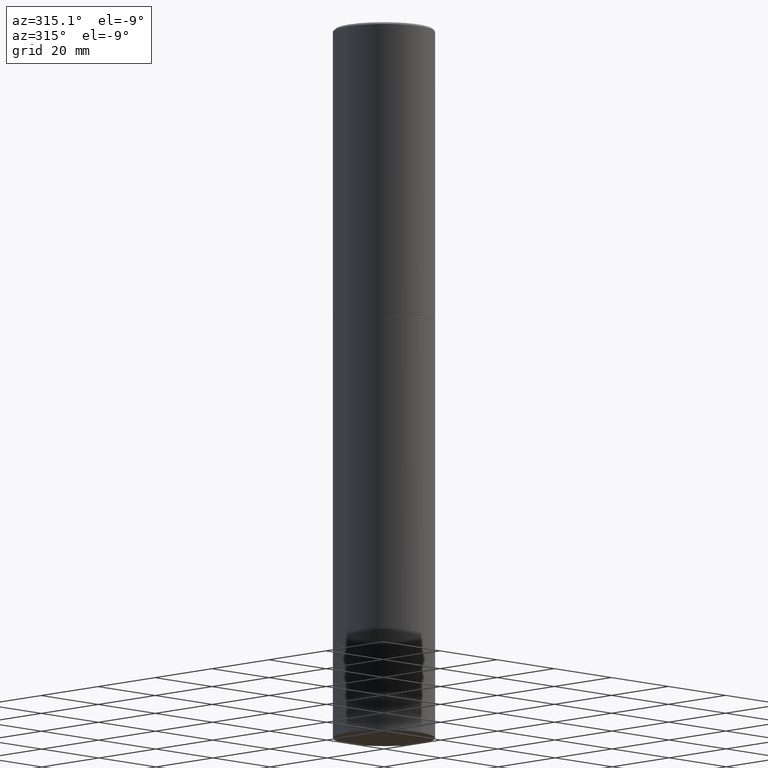
[diagram: clean part render]
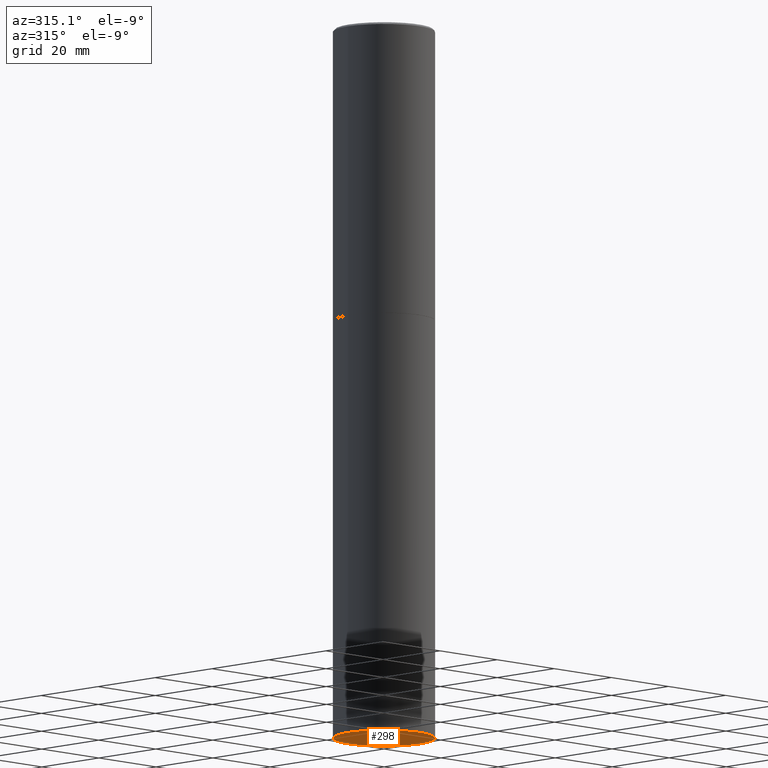
[diagram: same view with one face highlighted and labeled with its STEP entity id]
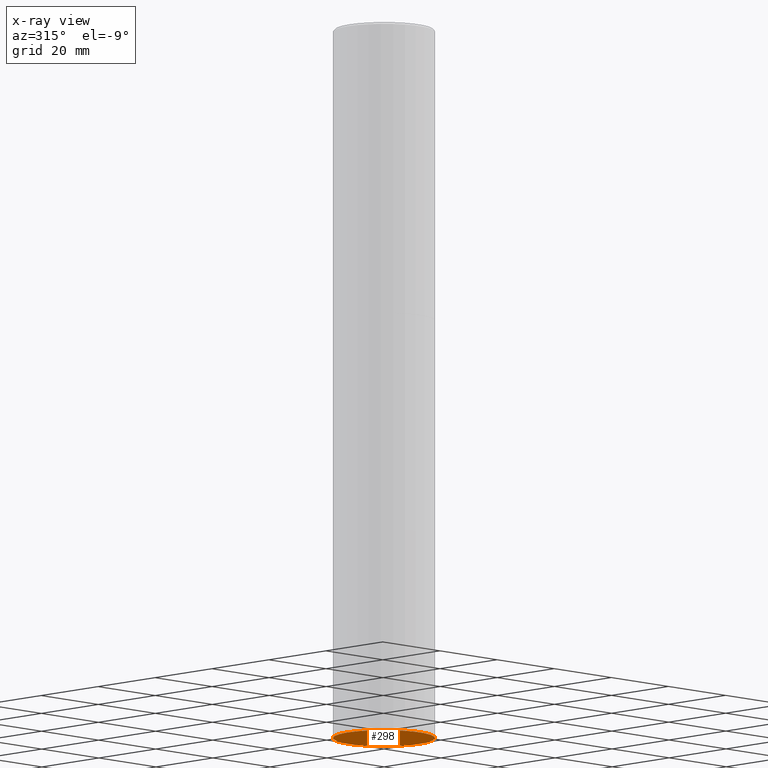
[diagram: x-ray of the same camera — body ghosted, the highlighted face saturated]
A machine part, auxiliary view. The second image highlights one B-rep face of the part: STEP entity #298.
The next image is the same camera in x-ray: the body ghosted, the highlighted face saturated — about 0% of this face is hidden behind the body in this view.
In plain terms, the highlighted planar face has unit normal (0, -0, -1).
Its self-contained STEP definition (entity closure, byte-faithful):
#9 = CARTESIAN_POINT ( 'NONE',  ( 0.5000000000000000000, -2.793185071074515204E-14, -7.000000000000000000 ) ) ;
#13 = CARTESIAN_POINT ( 'NONE',  ( 3.491481338843304144E-15, 0.4999999999999755196, -7.000000000000001776 ) ) ;
#41 = EDGE_CURVE ( 'NONE', #271, #249, #336, .T. ) ;
#42 = EDGE_CURVE ( 'NONE', #249, #271, #148, .T. ) ;
#83 = CARTESIAN_POINT ( 'NONE',  ( 1.711828164329595394E-28, -2.444036937190201868E-14, -7.000000000000000000 ) ) ;
#113 = AXIS2_PLACEMENT_3D ( 'NONE', #13, #291, #155 ) ;
#122 = DIRECTION ( 'NONE',  ( -2.445468806185136597E-29, 3.491481338843145583E-15, 1.000000000000000000 ) ) ;
#136 = ORIENTED_EDGE ( 'NONE', *, *, #41, .F. ) ;
#148 = CIRCLE ( 'NONE', #182, 0.5000000000000000000 ) ;
#153 = DIRECTION ( 'NONE',  ( 1.000000000000000000, -6.982962677686270655E-15, 0.000000000000000000 ) ) ;
#155 = DIRECTION ( 'NONE',  ( -1.000000000000000000, 6.982962677686265922E-15, -4.876176775795935793E-29 ) ) ;
#158 = FACE_OUTER_BOUND ( 'NONE', #212, .T. ) ;
#173 = DIRECTION ( 'NONE',  ( -2.445468806185136597E-29, 3.491481338843145583E-15, 1.000000000000000000 ) ) ;
#182 = AXIS2_PLACEMENT_3D ( 'NONE', #83, #122, #153 ) ;
#183 = CARTESIAN_POINT ( 'NONE',  ( -0.5000000000000000000, -1.368647543173752918E-14, -7.000000000000000000 ) ) ;
#188 = AXIS2_PLACEMENT_3D ( 'NONE', #281, #173, #195 ) ;
#195 = DIRECTION ( 'NONE',  ( 1.000000000000000000, -6.982962677686270655E-15, 0.000000000000000000 ) ) ;
#212 = EDGE_LOOP ( 'NONE', ( #136, #215 ) ) ;
#215 = ORIENTED_EDGE ( 'NONE', *, *, #42, .F. ) ;
#238 = PLANE ( 'NONE',  #113 ) ;
#249 = VERTEX_POINT ( 'NONE', #183 ) ;
#271 = VERTEX_POINT ( 'NONE', #9 ) ;
#281 = CARTESIAN_POINT ( 'NONE',  ( 1.711828164329595394E-28, -2.444036937190201868E-14, -7.000000000000000000 ) ) ;
#291 = DIRECTION ( 'NONE',  ( 2.438088387897960049E-29, -3.491481338843145188E-15, -1.000000000000000000 ) ) ;
#298 = ADVANCED_FACE ( 'NONE', ( #158 ), #238, .T. ) ;
#336 = CIRCLE ( 'NONE', #188, 0.5000000000000000000 ) ;